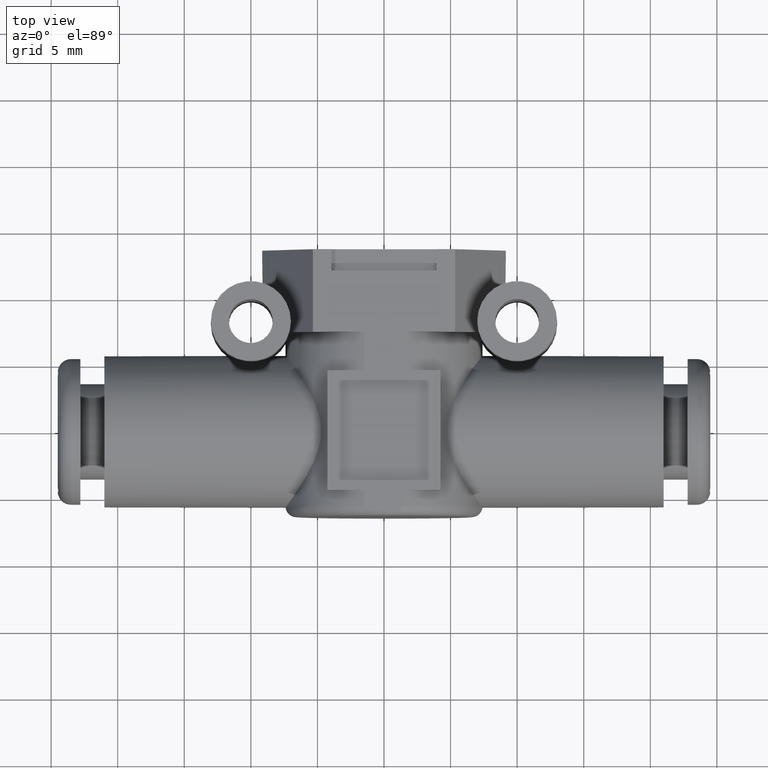
[diagram: clean part render]
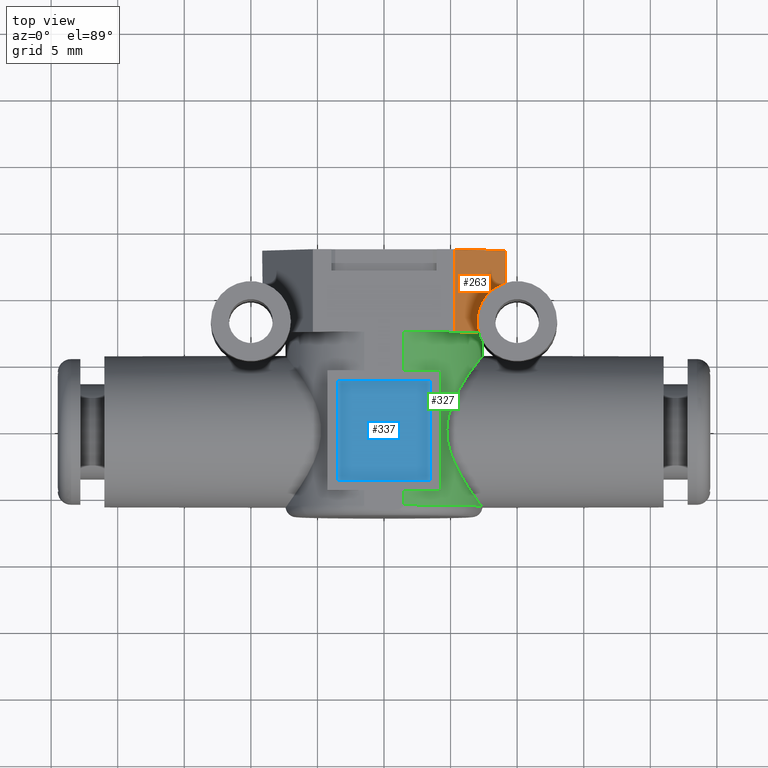
[diagram: same view with three faces highlighted in distinct colors, each labeled with its STEP entity id]
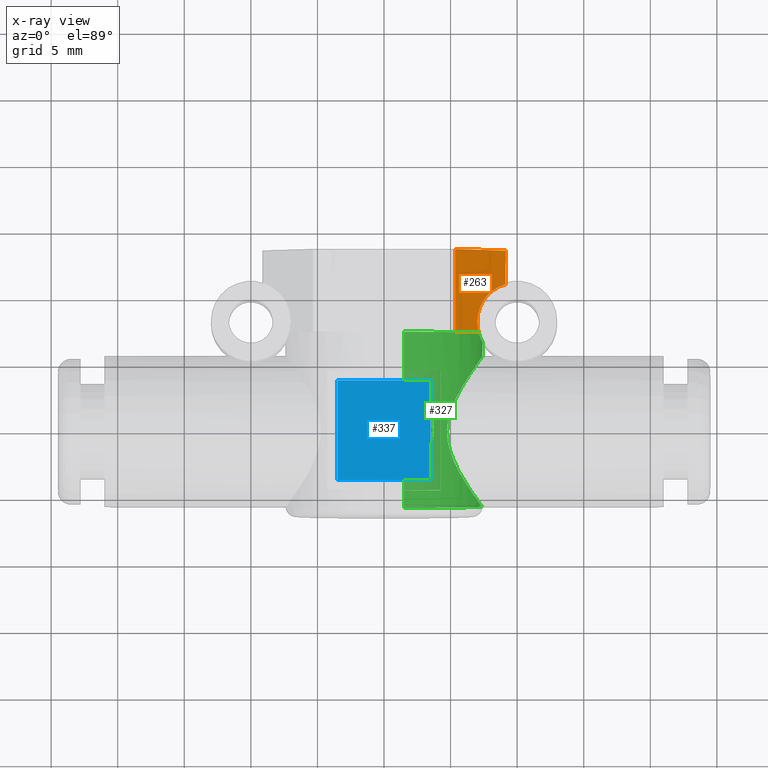
[diagram: x-ray of the same camera — body ghosted, the three highlighted faces saturated]
A machine part, top view with three faces highlighted in distinct colors.
The next image is the same camera in x-ray (body ghosted, the three faces saturated) — at least one of them is partly hidden behind the body in this view.
Their STEP definitions:

[orange] entity #263 — the highlighted planar face has unit normal (-0.866, 0, -0.5).
#263 = ADVANCED_FACE( '', ( #575 ), #576, .F. );
#575 = FACE_OUTER_BOUND( '', #1001, .T. );
#576 = PLANE( '', #1002 );
#1001 = EDGE_LOOP( '', ( #1532, #1533, #1534, #1535, #1536 ) );
#1002 = AXIS2_PLACEMENT_3D( '', #1537, #1538, #1539 );
#1532 = ORIENTED_EDGE( '', *, *, #2403, .F. );
#1533 = ORIENTED_EDGE( '', *, *, #2404, .F. );
#1534 = ORIENTED_EDGE( '', *, *, #2405, .F. );
#1535 = ORIENTED_EDGE( '', *, *, #2406, .T. );
#1536 = ORIENTED_EDGE( '', *, *, #2407, .T. );
#1537 = CARTESIAN_POINT( '', ( 5.34048999000404, 13.6000000000000, 7.25000000000000 ) );
#1538 = DIRECTION( '', ( -0.866025403784439, 0.000000000000000, -0.500000000000000 ) );
#1539 = DIRECTION( '', ( -0.500000000000000, 0.000000000000000, 0.866025403784439 ) );
#2403 = EDGE_CURVE( '', #2845, #2846, #2847, .F. );
#2404 = EDGE_CURVE( '', #2848, #2845, #2849, .T. );
#2405 = EDGE_CURVE( '', #2850, #2848, #2851, .T. );
#2406 = EDGE_CURVE( '', #2850, #2852, #2853, .T. );
#2407 = EDGE_CURVE( '', #2852, #2846, #2854, .T. );
#2845 = VERTEX_POINT( '', #3650 );
#2846 = VERTEX_POINT( '', #3651 );
#2847 = ELLIPSE( '', #3652, 6.00000000000000, 3.00000000000000 );
#2848 = VERTEX_POINT( '', #3653 );
#2849 = LINE( '', #3654, #3655 );
#2850 = VERTEX_POINT( '', #3656 );
#2851 = LINE( '', #3657, #3658 );
#2852 = VERTEX_POINT( '', #3659 );
#2853 = LINE( '', #3660, #3661 );
#2854 = LINE( '', #3662, #3663 );
#3650 = CARTESIAN_POINT( '', ( 9.12334547496256, 11.0690550436915, 0.697902102361240 ) );
#3651 = CARTESIAN_POINT( '', ( 7.10863354103981, 7.40000000000000, 4.18748553453079 ) );
#3652 = AXIS2_PLACEMENT_3D( '', #4559, #4560, #4561 );
#3653 = CARTESIAN_POINT( '', ( 9.12334547496256, 13.6000000000000, 0.697902102361240 ) );
#3654 = CARTESIAN_POINT( '', ( 9.12334547496256, 13.6000000000000, 0.697902102361240 ) );
#3655 = VECTOR( '', #4562, 1000.00000000000 );
#3656 = CARTESIAN_POINT( '', ( 5.34048999000404, 13.6000000000000, 7.25000000000000 ) );
#3657 = CARTESIAN_POINT( '', ( 5.34048999000404, 13.6000000000000, 7.25000000000000 ) );
#3658 = VECTOR( '', #4563, 1000.00000000000 );
#3659 = CARTESIAN_POINT( '', ( 5.34048999000404, 7.40000000000000, 7.25000000000000 ) );
#3660 = CARTESIAN_POINT( '', ( 5.34048999000404, 13.6000000000000, 7.25000000000000 ) );
#3661 = VECTOR( '', #4564, 1000.00000000000 );
#3662 = CARTESIAN_POINT( '', ( 5.34048999000404, 7.40000000000000, 7.25000000000000 ) );
#3663 = VECTOR( '', #4565, 1000.00000000000 );
#4559 = CARTESIAN_POINT( '', ( 10.0000000000000, 8.20000000000000, -0.820508075688773 ) );
#4560 = DIRECTION( '', ( -0.866025403784439, 0.000000000000000, -0.500000000000000 ) );
#4561 = DIRECTION( '', ( 0.500000000000000, -0.000000000000000, -0.866025403784438 ) );
#4562 = DIRECTION( '', ( -0.000000000000000, -1.00000000000000, -0.000000000000000 ) );
#4563 = DIRECTION( '', ( 0.500000000000000, 0.000000000000000, -0.866025403784439 ) );
#4564 = DIRECTION( '', ( -0.000000000000000, -1.00000000000000, -0.000000000000000 ) );
#4565 = DIRECTION( '', ( 0.500000000000000, 0.000000000000000, -0.866025403784439 ) );

[blue] entity #337 — the highlighted planar face has unit normal (0, 0, 1).
#337 = ADVANCED_FACE( '', ( #708 ), #709, .T. );
#708 = FACE_OUTER_BOUND( '', #1134, .T. );
#709 = PLANE( '', #1135 );
#1134 = EDGE_LOOP( '', ( #1841, #1842, #1843, #1844 ) );
#1135 = AXIS2_PLACEMENT_3D( '', #1845, #1846, #1847 );
#1841 = ORIENTED_EDGE( '', *, *, #2550, .F. );
#1842 = ORIENTED_EDGE( '', *, *, #2353, .F. );
#1843 = ORIENTED_EDGE( '', *, *, #2392, .T. );
#1844 = ORIENTED_EDGE( '', *, *, #2551, .T. );
#1845 = CARTESIAN_POINT( '', ( 3.50000000000000, 3.75000000000000, 6.95000000000000 ) );
#1846 = DIRECTION( '', ( 0.000000000000000, -0.000000000000000, 1.00000000000000 ) );
#1847 = DIRECTION( '', ( 1.00000000000000, 0.000000000000000, -0.000000000000000 ) );
#2353 = EDGE_CURVE( '', #2764, #2760, #2766, .T. );
#2392 = EDGE_CURVE( '', #2764, #2827, #2828, .T. );
#2550 = EDGE_CURVE( '', #2760, #3073, #3074, .T. );
#2551 = EDGE_CURVE( '', #2827, #3073, #3075, .T. );
#2760 = VERTEX_POINT( '', #3406 );
#2764 = VERTEX_POINT( '', #3412 );
#2766 = LINE( '', #3415, #3416 );
#2827 = VERTEX_POINT( '', #3498 );
#2828 = LINE( '', #3499, #3500 );
#3073 = VERTEX_POINT( '', #4105 );
#3074 = LINE( '', #4106, #4107 );
#3075 = LINE( '', #4108, #4109 );
#3406 = CARTESIAN_POINT( '', ( 3.50000000000000, -3.75000000000000, 6.95000000000000 ) );
#3412 = CARTESIAN_POINT( '', ( 3.50000000000000, 3.75000000000000, 6.95000000000000 ) );
#3415 = CARTESIAN_POINT( '', ( 3.50000000000000, 3.75000000000000, 6.95000000000000 ) );
#3416 = VECTOR( '', #4503, 1000.00000000000 );
#3498 = CARTESIAN_POINT( '', ( -3.50000000000000, 3.75000000000000, 6.95000000000000 ) );
#3499 = CARTESIAN_POINT( '', ( 3.50000000000000, 3.75000000000000, 6.95000000000000 ) );
#3500 = VECTOR( '', #4550, 1000.00000000000 );
#4105 = CARTESIAN_POINT( '', ( -3.50000000000000, -3.75000000000000, 6.95000000000000 ) );
#4106 = CARTESIAN_POINT( '', ( 3.50000000000000, -3.75000000000000, 6.95000000000000 ) );
#4107 = VECTOR( '', #4754, 1000.00000000000 );
#4108 = CARTESIAN_POINT( '', ( -3.50000000000000, 3.75000000000000, 6.95000000000000 ) );
#4109 = VECTOR( '', #4755, 1000.00000000000 );
#4503 = DIRECTION( '', ( -0.000000000000000, -1.00000000000000, -0.000000000000000 ) );
#4550 = DIRECTION( '', ( -1.00000000000000, 0.000000000000000, 0.000000000000000 ) );
#4754 = DIRECTION( '', ( -1.00000000000000, 0.000000000000000, 0.000000000000000 ) );
#4755 = DIRECTION( '', ( -0.000000000000000, -1.00000000000000, -0.000000000000000 ) );

[green] entity #327 — the highlighted cylindrical surface (partial cylindrical patch) has radius 7.4 mm, axis along (0, 1, 0).
#327 = ADVANCED_FACE( '', ( #689 ), #690, .T. );
#689 = FACE_OUTER_BOUND( '', #1115, .T. );
#690 = CYLINDRICAL_SURFACE( '', #1116, 7.40000000000000 );
#1115 = EDGE_LOOP( '', ( #1780, #1781, #1782, #1783, #1784, #1785, #1786, #1787, #1788, #1789, #1790, #1791, #1792, #1793 ) );
#1116 = AXIS2_PLACEMENT_3D( '', #1794, #1795, #1796 );
#1780 = ORIENTED_EDGE( '', *, *, #2419, .T. );
#1781 = ORIENTED_EDGE( '', *, *, #2517, .F. );
#1782 = ORIENTED_EDGE( '', *, *, #2518, .T. );
#1783 = ORIENTED_EDGE( '', *, *, #2503, .T. );
#1784 = ORIENTED_EDGE( '', *, *, #2519, .F. );
#1785 = ORIENTED_EDGE( '', *, *, #2520, .F. );
#1786 = ORIENTED_EDGE( '', *, *, #2521, .F. );
#1787 = ORIENTED_EDGE( '', *, *, #2499, .T. );
#1788 = ORIENTED_EDGE( '', *, *, #2522, .F. );
#1789 = ORIENTED_EDGE( '', *, *, #2399, .F. );
#1790 = ORIENTED_EDGE( '', *, *, #2523, .F. );
#1791 = ORIENTED_EDGE( '', *, *, #2524, .T. );
#1792 = ORIENTED_EDGE( '', *, *, #2525, .T. );
#1793 = ORIENTED_EDGE( '', *, *, #2526, .T. );
#1794 = CARTESIAN_POINT( '', ( 0.000000000000000, -6.40000000000000, 0.000000000000000 ) );
#1795 = DIRECTION( '', ( -0.000000000000000, 1.00000000000000, 0.000000000000000 ) );
#1796 = DIRECTION( '', ( 0.000000000000000, 0.000000000000000, -1.00000000000000 ) );
#2399 = EDGE_CURVE( '', #2837, #2838, #2840, .T. );
#2419 = EDGE_CURVE( '', #2873, #2871, #2874, .T. );
#2499 = EDGE_CURVE( '', #2995, #2993, #2996, .T. );
#2503 = EDGE_CURVE( '', #3003, #3001, #3004, .T. );
#2517 = EDGE_CURVE( '', #3022, #2871, #3023, .T. );
#2518 = EDGE_CURVE( '', #3022, #3003, #3024, .T. );
#2519 = EDGE_CURVE( '', #3025, #3001, #3026, .T. );
#2520 = EDGE_CURVE( '', #3027, #3025, #3028, .F. );
#2521 = EDGE_CURVE( '', #2995, #3027, #3029, .T. );
#2522 = EDGE_CURVE( '', #2838, #2993, #3030, .T. );
#2523 = EDGE_CURVE( '', #3031, #2837, #3032, .T. );
#2524 = EDGE_CURVE( '', #3031, #3033, #3034, .F. );
#2525 = EDGE_CURVE( '', #3033, #3035, #3036, .T. );
#2526 = EDGE_CURVE( '', #3035, #2873, #3037, .F. );
#2837 = VERTEX_POINT( '', #3560 );
#2838 = VERTEX_POINT( '', #3561 );
#2840 = B_SPLINE_CURVE_WITH_KNOTS( '', 3, ( #3568, #3569, #3570, #3571, #3572, #3573, #3574, #3575, #3576, #3577, #3578, #3579, #3580, #3581, #3582, #3583, #3584, #3585, #3586, #3587, #3588, #3589, #3590, #3591, #3592, #3593, #3594, #3595, #3596, #3597, #3598, #3599, #3600, #3601, #3602, #3603, #3604, #3605, #3606, #3607, #3608, #3609, #3610, #3611, #3612, #3613, #3614, #3615, #3616, #3617, #3618, #3619, #3620, #3621, #3622, #3623, #3624, #3625, #3626, #3627, #3628, #3629, #3630, #3631, #3632, #3633, #3634, #3635, #3636, #3637, #3638, #3639, #3640, #3641, #3642, #3643, #3644, #3645 ), .UNSPECIFIED., .F., .F., ( 4, 2, 2, 2, 2, 2, 2, 2, 2, 2, 2, 2, 2, 2, 2, 2, 2, 2, 2, 2, 2, 2, 2, 2, 2, 2, 2, 2, 2, 2, 2, 2, 2, 2, 2, 2, 2, 2, 4 ), ( -0.0176694670997260, -0.0165651950826545, -0.0154609230655830, -0.0143566510485116, -0.0132523790314401, -0.0121481070143686, -0.0110438349972971, -0.0104916989887613, -0.00993956298022559, -0.00938742697168985, -0.00883529096315410, -0.00828315495461836, -0.00773101894608262, -0.00662674692901113, -0.00552247491193964, -0.00441820289486815, -0.00331393087779667, -0.00220965886072518, -0.00110538684365369, -1.11482658220891E-006, 0.00110315719048928, 0.00220742920756076, 0.00331170122463225, 0.00441597324170374, 0.00552024525877522, 0.00662451727584671, 0.00772878929291820, 0.00828092530145394, 0.00883306130998969, 0.00993733332706118, 0.0104894693355969, 0.0110416053441327, 0.0115937413526684, 0.0121458773612042, 0.0132501493782756, 0.0143544213953471, 0.0154586934124186, 0.0165629654294901, 0.0176672374465616 ), .UNSPECIFIED. );
#2871 = VERTEX_POINT( '', #3680 );
#2873 = VERTEX_POINT( '', #3683 );
#2874 = CIRCLE( '', #3684, 7.40000000000000 );
#2993 = VERTEX_POINT( '', #3872 );
#2995 = VERTEX_POINT( '', #3895 );
#2996 = LINE( '', #3896, #3897 );
#3001 = VERTEX_POINT( '', #3904 );
#3003 = VERTEX_POINT( '', #3907 );
#3004 = LINE( '', #3908, #3909 );
#3022 = VERTEX_POINT( '', #3933 );
#3023 = B_SPLINE_CURVE_WITH_KNOTS( '', 3, ( #3934, #3935, #3936, #3937, #3938, #3939, #3940, #3941, #3942, #3943, #3944, #3945, #3946, #3947, #3948, #3949, #3950, #3951 ), .UNSPECIFIED., .F., .F., ( 4, 2, 2, 2, 2, 2, 2, 2, 4 ), ( 0.000894496190049907, 0.00145695186895388, 0.00201940754785785, 0.00258186322676182, 0.00314431890566580, 0.00370677458456977, 0.00426923026347374, 0.00483168594237771, 0.00539414162128169 ), .UNSPECIFIED. );
#3024 = CIRCLE( '', #3952, 7.40000000000000 );
#3025 = VERTEX_POINT( '', #3953 );
#3026 = CIRCLE( '', #3954, 7.40000000000000 );
#3027 = VERTEX_POINT( '', #3955 );
#3028 = LINE( '', #3956, #3957 );
#3029 = CIRCLE( '', #3958, 7.40000000000000 );
#3030 = CIRCLE( '', #3959, 7.40000000000000 );
#3031 = VERTEX_POINT( '', #3960 );
#3032 = CIRCLE( '', #3961, 7.40000000000000 );
#3033 = VERTEX_POINT( '', #3962 );
#3034 = LINE( '', #3963, #3964 );
#3035 = VERTEX_POINT( '', #3965 );
#3036 = B_SPLINE_CURVE_WITH_KNOTS( '', 3, ( #3966, #3967, #3968, #3969, #3970, #3971, #3972, #3973, #3974, #3975, #3976, #3977, #3978, #3979, #3980, #3981, #3982, #3983, #3984, #3985, #3986, #3987, #3988, #3989, #3990, #3991, #3992, #3993, #3994, #3995 ), .UNSPECIFIED., .F., .F., ( 4, 2, 2, 2, 2, 2, 2, 2, 2, 2, 2, 2, 2, 2, 4 ), ( 6.13317366673350E-019, 0.00111019309997562, 0.00166528964996343, 0.00222038619995124, 0.00277548274993905, 0.00333057929992686, 0.00388567584991467, 0.00444077239990248, 0.00499586894989029, 0.00555096549987810, 0.00610606204986590, 0.00666115859985371, 0.00721625514984152, 0.00777135169982933, 0.00888154479980495 ), .UNSPECIFIED. );
#3037 = LINE( '', #3996, #3997 );
#3560 = CARTESIAN_POINT( '', ( 7.32325064435187, -5.60000000000000, -1.06301458127346 ) );
#3561 = CARTESIAN_POINT( '', ( 7.32325064435187, -5.60000000000000, 1.06301458127346 ) );
#3568 = CARTESIAN_POINT( '', ( 7.32325064435187, -5.60000000000000, -1.06301458127346 ) );
#3569 = CARTESIAN_POINT( '', ( 7.27041926835237, -5.53091117708388, -1.42697704721327 ) );
#3570 = CARTESIAN_POINT( '', ( 7.19279996473184, -5.42899162681844, -1.77256146325659 ) );
#3571 = CARTESIAN_POINT( '', ( 6.99732583560083, -5.16721855556596, -2.43223695887179 ) );
#3572 = CARTESIAN_POINT( '', ( 6.87785728208605, -5.00516028288750, -2.74922573531448 ) );
#3573 = CARTESIAN_POINT( '', ( 6.61378524296628, -4.63560825617620, -3.33481749071536 ) );
#3574 = CARTESIAN_POINT( '', ( 6.46943190164436, -4.42862520123580, -3.60439417914822 ) );
#3575 = CARTESIAN_POINT( '', ( 6.16541308118339, -3.97133359271597, -4.10279027822091 ) );
#3576 = CARTESIAN_POINT( '', ( 6.00588469982659, -3.72109424265320, -4.33069533342321 ) );
#3577 = CARTESIAN_POINT( '', ( 5.69215462937077, -3.19006514976775, -4.73549878828805 ) );
#3578 = CARTESIAN_POINT( '', ( 5.53655858173922, -2.90759393012069, -4.91450131378742 ) );
#3579 = CARTESIAN_POINT( '', ( 5.24327253204214, -2.30054958188516, -5.22626991715707 ) );
#3580 = CARTESIAN_POINT( '', ( 5.10696911214683, -1.97807970913487, -5.35737287994860 ) );
#3581 = CARTESIAN_POINT( '', ( 4.94070517081752, -1.47172824963043, -5.50954415871810 ) );
#3582 = CARTESIAN_POINT( '', ( 4.89143137728577, -1.29855201054214, -5.55309604807845 ) );
#3583 = CARTESIAN_POINT( '', ( 4.80902056885766, -0.941708679520004, -5.62461534739792 ) );
#3584 = CARTESIAN_POINT( '', ( 4.77641356716235, -0.759594355634182, -5.65214205748537 ) );
#3585 = CARTESIAN_POINT( '', ( 4.73208901497137, -0.394364636030494, -5.68930311698672 ) );
#3586 = CARTESIAN_POINT( '', ( 4.72014171432468, -0.210264212810532, -5.69914588114412 ) );
#3587 = CARTESIAN_POINT( '', ( 4.71820660861290, 0.161080220509336, -5.70074801901571 ) );
#3588 = CARTESIAN_POINT( '', ( 4.72849452922465, 0.349192655942920, -5.69228078947707 ) );
#3589 = CARTESIAN_POINT( '', ( 4.76968201169060, 0.716338949591484, -5.65781358887975 ) );
#3590 = CARTESIAN_POINT( '', ( 4.80044691968478, 0.896845693376824, -5.63191190029532 ) );
#3591 = CARTESIAN_POINT( '', ( 4.87938401580631, 1.25236973083971, -5.56366191529402 ) );
#3592 = CARTESIAN_POINT( '', ( 4.92791012451233, 1.42844005003296, -5.52097761514965 ) );
#3593 = CARTESIAN_POINT( '', ( 5.09228239986840, 1.94059556968414, -5.37127806476345 ) );
#3594 = CARTESIAN_POINT( '', ( 5.22555815255337, 2.25999451265710, -5.24384200335387 ) );
#3595 = CARTESIAN_POINT( '', ( 5.51528372799619, 2.86696211900728, -4.93821651626939 ) );
#3596 = CARTESIAN_POINT( '', ( 5.67298705837268, 3.15590742712827, -4.75840317905557 ) );
#3597 = CARTESIAN_POINT( '', ( 5.98744931583364, 3.69141149613751, -4.35610303703131 ) );
#3598 = CARTESIAN_POINT( '', ( 6.14515587279188, 3.93989652866826, -4.13298913583540 ) );
#3599 = CARTESIAN_POINT( '', ( 6.45049346725177, 4.40098965310775, -3.63808657494351 ) );
#3600 = CARTESIAN_POINT( '', ( 6.59736337982037, 4.61217393160885, -3.36690707554228 ) );
#3601 = CARTESIAN_POINT( '', ( 6.86204938224664, 4.98343922752237, -2.78810779855086 ) );
#3602 = CARTESIAN_POINT( '', ( 6.98130489432015, 5.14555682772617, -2.47843490813363 ) );
#3603 = CARTESIAN_POINT( '', ( 7.18319443583870, 5.41631049174297, -1.81189826376918 ) );
#3604 = CARTESIAN_POINT( '', ( 7.26229915488994, 5.52024354516853, -1.46646190406614 ) );
#3605 = CARTESIAN_POINT( '', ( 7.37088394985386, 5.66233432296900, -0.749379295803697 ) );
#3606 = CARTESIAN_POINT( '', ( 7.39994259918114, 5.69992547963807, -0.375345784729720 ) );
#3607 = CARTESIAN_POINT( '', ( 7.40005722723187, 5.70007429500338, 0.373079030479276 ) );
#3608 = CARTESIAN_POINT( '', ( 7.37191317892014, 5.66366963796474, 0.738890215023796 ) );
#3609 = CARTESIAN_POINT( '', ( 7.26458559061586, 5.52324665879144, 1.45494290747464 ) );
#3610 = CARTESIAN_POINT( '', ( 7.18400393969294, 5.41736304428154, 1.80800534681606 ) );
#3611 = CARTESIAN_POINT( '', ( 6.98484415895973, 5.15033568546532, 2.46794408662054 ) );
#3612 = CARTESIAN_POINT( '', ( 6.86593204189840, 4.98882163869027, 2.77902230077842 ) );
#3613 = CARTESIAN_POINT( '', ( 6.59816004562106, 4.61335393464747, 3.36574980718424 ) );
#3614 = CARTESIAN_POINT( '', ( 6.45274505551626, 4.40425485989696, 3.63402547377009 ) );
#3615 = CARTESIAN_POINT( '', ( 6.14864006822555, 3.94529045927230, 4.12774577789268 ) );
#3616 = CARTESIAN_POINT( '', ( 5.98858208956664, 3.69323937940659, 4.35454826116389 ) );
#3617 = CARTESIAN_POINT( '', ( 5.67416639902451, 3.15801614846094, 4.75699923044612 ) );
#3618 = CARTESIAN_POINT( '', ( 5.51930207902929, 2.87460181970189, 4.93373170388913 ) );
#3619 = CARTESIAN_POINT( '', ( 5.22959997376260, 2.26921926393951, 5.23981756170575 ) );
#3620 = CARTESIAN_POINT( '', ( 5.09343179087421, 1.94330901202393, 5.37017773853052 ) );
#3621 = CARTESIAN_POINT( '', ( 4.92951779410466, 1.43387457937429, 5.51953969145342 ) );
#3622 = CARTESIAN_POINT( '', ( 4.88146153603252, 1.26042008665979, 5.56184267073102 ) );
#3623 = CARTESIAN_POINT( '', ( 4.80199276337797, 0.905056112417808, 5.63059731486767 ) );
#3624 = CARTESIAN_POINT( '', ( 4.77044485365124, 0.721529865355695, 5.65717189784378 ) );
#3625 = CARTESIAN_POINT( '', ( 4.70794935716283, 0.169210310265868, 5.70948025518208 ) );
#3626 = CARTESIAN_POINT( '', ( 4.70916187396987, -0.198756576816282, 5.70850804156419 ) );
#3627 = CARTESIAN_POINT( '', ( 4.77490152200949, -0.750339390064667, 5.65341780333588 ) );
#3628 = CARTESIAN_POINT( '', ( 4.80746391002677, -0.933598667545163, 5.62593949586334 ) );
#3629 = CARTESIAN_POINT( '', ( 4.88889525398342, -1.28887316298148, 5.55532246164913 ) );
#3630 = CARTESIAN_POINT( '', ( 4.93789942347866, -1.46241667206370, 5.51206132375873 ) );
#3631 = CARTESIAN_POINT( '', ( 5.04904966767853, -1.80241902814626, 5.41043142518071 ) );
#3632 = CARTESIAN_POINT( '', ( 5.11150391242129, -1.96951435085176, 5.35173973678507 ) );
#3633 = CARTESIAN_POINT( '', ( 5.24394007831754, -2.29137995026965, 5.22203819518754 ) );
#3634 = CARTESIAN_POINT( '', ( 5.31410274452983, -2.44686543799156, 5.15088032951401 ) );
#3635 = CARTESIAN_POINT( '', ( 5.53232789237510, -2.89939681272229, 4.91918414829367 ) );
#3636 = CARTESIAN_POINT( '', ( 5.68796131809057, -3.18272107339477, 4.74064193839915 ) );
#3637 = CARTESIAN_POINT( '', ( 6.00437115646649, -3.71877432221201, 4.33291091064617 ) );
#3638 = CARTESIAN_POINT( '', ( 6.16304878767871, -3.96762999245044, 4.10619893831244 ) );
#3639 = CARTESIAN_POINT( '', ( 6.46539048519768, -4.42269052995673, 3.61147697683670 ) );
#3640 = CARTESIAN_POINT( '', ( 6.61000573565616, -4.63024742870494, 3.34250059680057 ) );
#3641 = CARTESIAN_POINT( '', ( 6.87628374228733, -5.00302843586426, 2.75339934636704 ) );
#3642 = CARTESIAN_POINT( '', ( 6.99453817749774, -5.16345259736983, 2.44036131305977 ) );
#3643 = CARTESIAN_POINT( '', ( 7.19118378998472, -5.42685937814413, 1.77927045538703 ) );
#3644 = CARTESIAN_POINT( '', ( 7.27038998705600, -5.53087288524950, 1.42717877000837 ) );
#3645 = CARTESIAN_POINT( '', ( 7.32325064435187, -5.60000000000001, 1.06301458127346 ) );
#3680 = CARTESIAN_POINT( '', ( 7.10863354103981, 7.40000000000000, -2.05604697884164 ) );
#3683 = CARTESIAN_POINT( '', ( 1.48239670803736, 7.40000000000000, -7.25000000000000 ) );
#3684 = AXIS2_PLACEMENT_3D( '', #4585, #4586, #4587 );
#3872 = CARTESIAN_POINT( '', ( 1.48239670803820, -5.59999999999913, 7.25000000000000 ) );
#3895 = CARTESIAN_POINT( '', ( 1.48239670803778, -4.50000000000000, 7.25000000000000 ) );
#3896 = CARTESIAN_POINT( '', ( 1.48239670803736, -6.40000000000000, 7.25000000000000 ) );
#3897 = VECTOR( '', #4688, 1000.00000000000 );
#3904 = CARTESIAN_POINT( '', ( 1.48239670803736, 4.50000000000000, 7.25000000000000 ) );
#3907 = CARTESIAN_POINT( '', ( 1.48239670803736, 7.40000000000000, 7.25000000000000 ) );
#3908 = CARTESIAN_POINT( '', ( 1.48239670803736, -6.40000000000000, 7.25000000000000 ) );
#3909 = VECTOR( '', #4692, 1000.00000000000 );
#3933 = CARTESIAN_POINT( '', ( 7.10863354103981, 7.40000000000000, 2.05604697884164 ) );
#3934 = CARTESIAN_POINT( '', ( 7.10863354103981, 7.40000000000000, 2.05604697884164 ) );
#3935 = CARTESIAN_POINT( '', ( 7.14549220931862, 7.26678510352088, 1.92861080238208 ) );
#3936 = CARTESIAN_POINT( '', ( 7.18537629520818, 7.15737480778430, 1.77700313586430 ) );
#3937 = CARTESIAN_POINT( '', ( 7.25761606476487, 6.97995727829591, 1.45409136751378 ) );
#3938 = CARTESIAN_POINT( '', ( 7.29014095421125, 6.91147827007933, 1.28312340434027 ) );
#3939 = CARTESIAN_POINT( '', ( 7.34401627927292, 6.80379988119411, 0.926275171214414 ) );
#3940 = CARTESIAN_POINT( '', ( 7.36493990655526, 6.76567804173931, 0.742799652837544 ) );
#3941 = CARTESIAN_POINT( '', ( 7.39281966605689, 6.71560386610781, 0.374577811126351 ) );
#3942 = CARTESIAN_POINT( '', ( 7.39997938178111, 6.70337286322299, 0.188602788328481 ) );
#3943 = CARTESIAN_POINT( '', ( 7.40002052939974, 6.70330138165433, -0.186981354721003 ) );
#3944 = CARTESIAN_POINT( '', ( 7.39277877688751, 6.71567534543815, -0.375330095933151 ) );
#3945 = CARTESIAN_POINT( '', ( 7.36488354065843, 6.76578124677737, -0.743331122347342 ) );
#3946 = CARTESIAN_POINT( '', ( 7.34423130034377, 6.80341028575781, -0.924410582094810 ) );
#3947 = CARTESIAN_POINT( '', ( 7.29072754252264, 6.91026631929091, -1.27967191808674 ) );
#3948 = CARTESIAN_POINT( '', ( 7.25765143571198, 6.97988285555176, -1.45390724187445 ) );
#3949 = CARTESIAN_POINT( '', ( 7.18545180419701, 7.15717693364059, -1.77669158826991 ) );
#3950 = CARTESIAN_POINT( '', ( 7.14543131994872, 7.26700517037317, -1.92882132296921 ) );
#3951 = CARTESIAN_POINT( '', ( 7.10863354103981, 7.40000000000000, -2.05604697884164 ) );
#3952 = AXIS2_PLACEMENT_3D( '', #4705, #4706, #4707 );
#3953 = CARTESIAN_POINT( '', ( 4.25000000000000, 4.50000000000000, 6.05784615189260 ) );
#3954 = AXIS2_PLACEMENT_3D( '', #4708, #4709, #4710 );
#3955 = CARTESIAN_POINT( '', ( 4.25000000000000, -4.50000000000000, 6.05784615189260 ) );
#3956 = CARTESIAN_POINT( '', ( 4.25000000000000, -6.40000000000000, 6.05784615189260 ) );
#3957 = VECTOR( '', #4711, 1000.00000000000 );
#3958 = AXIS2_PLACEMENT_3D( '', #4712, #4713, #4714 );
#3959 = AXIS2_PLACEMENT_3D( '', #4715, #4716, #4717 );
#3960 = CARTESIAN_POINT( '', ( 1.48239670803736, -5.60000000000000, -7.25000000000000 ) );
#3961 = AXIS2_PLACEMENT_3D( '', #4718, #4719, #4720 );
#3962 = CARTESIAN_POINT( '', ( 1.48239670803736, -3.14456092992997, -7.25000000000000 ) );
#3963 = CARTESIAN_POINT( '', ( 1.48239670803736, -6.40000000000000, -7.25000000000000 ) );
#3964 = VECTOR( '', #4721, 1000.00000000000 );
#3965 = CARTESIAN_POINT( '', ( 1.48239670803736, 3.74456092992997, -7.25000000000000 ) );
#3966 = CARTESIAN_POINT( '', ( 1.48239670803736, -3.14456092992997, -7.25000000000000 ) );
#3967 = CARTESIAN_POINT( '', ( 1.82161728976989, -2.99857440686125, -7.18064007259878 ) );
#3968 = CARTESIAN_POINT( '', ( 2.12744685565586, -2.80906586429240, -7.09362121907524 ) );
#3969 = CARTESIAN_POINT( '', ( 2.54224415297453, -2.46259838461979, -6.95114146723439 ) );
#3970 = CARTESIAN_POINT( '', ( 2.67306982429222, -2.33615435720247, -6.90154880930182 ) );
#3971 = CARTESIAN_POINT( '', ( 2.91225944561858, -2.06925241414766, -6.80407401298093 ) );
#3972 = CARTESIAN_POINT( '', ( 3.02176210722122, -1.92794245176790, -6.75581330471292 ) );
#3973 = CARTESIAN_POINT( '', ( 3.22090056465030, -1.62887878148498, -6.66317185681185 ) );
#3974 = CARTESIAN_POINT( '', ( 3.31117536893074, -1.46968788595909, -6.61844461490244 ) );
#3975 = CARTESIAN_POINT( '', ( 3.46709990946092, -1.14044984478462, -6.53811208699888 ) );
#3976 = CARTESIAN_POINT( '', ( 3.53268644165327, -0.971144963668269, -6.50260234943054 ) );
#3977 = CARTESIAN_POINT( '', ( 3.63925860697636, -0.622756633814398, -6.44356326898471 ) );
#3978 = CARTESIAN_POINT( '', ( 3.68025206021261, -0.443676404878126, -6.42002946359294 ) );
#3979 = CARTESIAN_POINT( '', ( 3.73589471488440, -0.0747005486657779, -6.38781059670678 ) );
#3980 = CARTESIAN_POINT( '', ( 3.74987530612060, 0.112375991334409, -6.37953252277840 ) );
#3981 = CARTESIAN_POINT( '', ( 3.75012301518482, 0.482605999523343, -6.37938691345975 ) );
#3982 = CARTESIAN_POINT( '', ( 3.73661524434984, 0.667152208396774, -6.38738635698875 ) );
#3983 = CARTESIAN_POINT( '', ( 3.68194476778285, 1.03510336377595, -6.41905605870132 ) );
#3984 = CARTESIAN_POINT( '', ( 3.64056837319950, 1.21785074902650, -6.44282590776838 ) );
#3985 = CARTESIAN_POINT( '', ( 3.53353401565488, 1.56898598796003, -6.50214434767191 ) );
#3986 = CARTESIAN_POINT( '', ( 3.46766548527256, 1.73914612358752, -6.53781451273328 ) );
#3987 = CARTESIAN_POINT( '', ( 3.31143129204099, 2.06925642033010, -6.61831891938944 ) );
#3988 = CARTESIAN_POINT( '', ( 3.22123998425143, 2.22834632244840, -6.66301132517073 ) );
#3989 = CARTESIAN_POINT( '', ( 3.02171327004870, 2.52803848464338, -6.75583865031612 ) );
#3990 = CARTESIAN_POINT( '', ( 2.91184401576426, 2.66982709801896, -6.80426439983978 ) );
#3991 = CARTESIAN_POINT( '', ( 2.67141408618339, 2.93788984356589, -6.90220228443141 ) );
#3992 = CARTESIAN_POINT( '', ( 2.54036750790388, 3.06427546585527, -6.95181577040680 ) );
#3993 = CARTESIAN_POINT( '', ( 2.12713183943060, 3.40910820703511, -7.09366960474213 ) );
#3994 = CARTESIAN_POINT( '', ( 1.82194018077232, 3.59843544791444, -7.18057405155616 ) );
#3995 = CARTESIAN_POINT( '', ( 1.48239670803736, 3.74456092992997, -7.25000000000000 ) );
#3996 = CARTESIAN_POINT( '', ( 1.48239670803736, -6.40000000000000, -7.25000000000000 ) );
#3997 = VECTOR( '', #4722, 1000.00000000000 );
#4585 = CARTESIAN_POINT( '', ( 0.000000000000000, 7.40000000000000, 0.000000000000000 ) );
#4586 = DIRECTION( '', ( 0.000000000000000, -1.00000000000000, -0.000000000000000 ) );
#4587 = DIRECTION( '', ( 0.000000000000000, 0.000000000000000, -1.00000000000000 ) );
#4688 = DIRECTION( '', ( -0.000000000000000, -1.00000000000000, -0.000000000000000 ) );
#4692 = DIRECTION( '', ( -0.000000000000000, -1.00000000000000, -0.000000000000000 ) );
#4705 = CARTESIAN_POINT( '', ( 0.000000000000000, 7.40000000000000, 0.000000000000000 ) );
#4706 = DIRECTION( '', ( 0.000000000000000, -1.00000000000000, -0.000000000000000 ) );
#4707 = DIRECTION( '', ( 0.000000000000000, 0.000000000000000, -1.00000000000000 ) );
#4708 = CARTESIAN_POINT( '', ( 0.000000000000000, 4.50000000000000, 0.000000000000000 ) );
#4709 = DIRECTION( '', ( 0.000000000000000, -1.00000000000000, 0.000000000000000 ) );
#4710 = DIRECTION( '', ( 0.000000000000000, 0.000000000000000, -1.00000000000000 ) );
#4711 = DIRECTION( '', ( -0.000000000000000, -1.00000000000000, -0.000000000000000 ) );
#4712 = CARTESIAN_POINT( '', ( 0.000000000000000, -4.50000000000000, 0.000000000000000 ) );
#4713 = DIRECTION( '', ( 0.000000000000000, 1.00000000000000, 0.000000000000000 ) );
#4714 = DIRECTION( '', ( 0.000000000000000, -0.000000000000000, 1.00000000000000 ) );
#4715 = CARTESIAN_POINT( '', ( 0.000000000000000, -5.60000000000000, 0.000000000000000 ) );
#4716 = DIRECTION( '', ( 0.000000000000000, -1.00000000000000, -0.000000000000000 ) );
#4717 = DIRECTION( '', ( 0.000000000000000, 0.000000000000000, -1.00000000000000 ) );
#4718 = CARTESIAN_POINT( '', ( 0.000000000000000, -5.60000000000000, 0.000000000000000 ) );
#4719 = DIRECTION( '', ( 0.000000000000000, -1.00000000000000, -0.000000000000000 ) );
#4720 = DIRECTION( '', ( 0.000000000000000, 0.000000000000000, -1.00000000000000 ) );
#4721 = DIRECTION( '', ( -0.000000000000000, -1.00000000000000, -0.000000000000000 ) );
#4722 = DIRECTION( '', ( -0.000000000000000, -1.00000000000000, -0.000000000000000 ) );